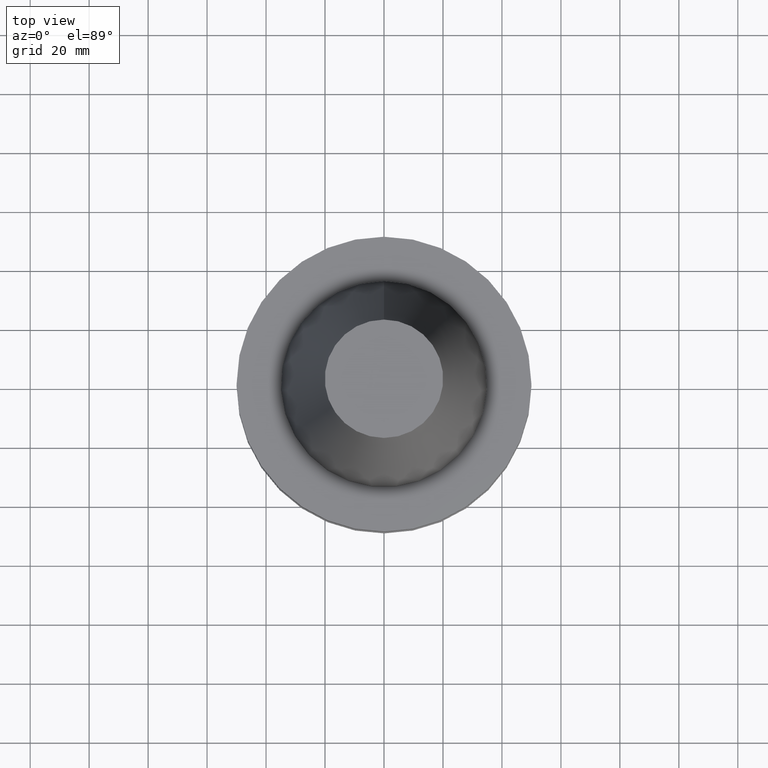
[diagram: clean part render]
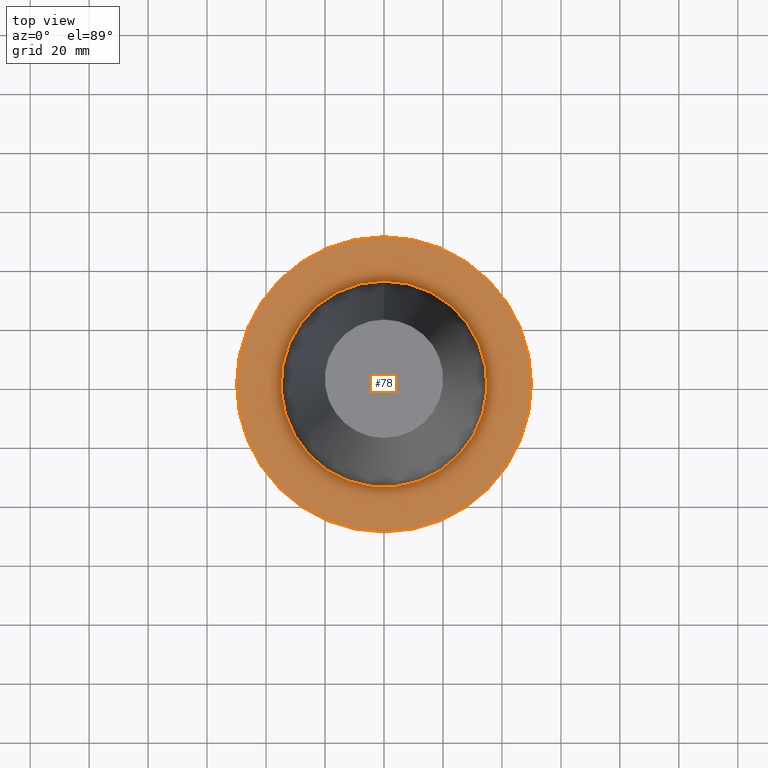
[diagram: same view with one face highlighted and labeled with its STEP entity id]
A machine part, top view. The second image highlights one B-rep face of the part: STEP entity #78.
In plain terms, the highlighted planar face has unit normal (-0, -0, 1).
Its self-contained STEP definition (entity closure, byte-faithful):
#78=ADVANCED_FACE('',(#100,#101),#102,.T.);
#100=FACE_OUTER_BOUND('',#146,.T.);
#101=FACE_BOUND('',#147,.T.);
#102=PLANE('',#148);
#146=EDGE_LOOP('',(#198));
#147=EDGE_LOOP('',(#199));
#148=AXIS2_PLACEMENT_3D('',#200,#201,#202);
#198=ORIENTED_EDGE('',*,*,#265,.F.);
#199=ORIENTED_EDGE('',*,*,#264,.T.);
#200=CARTESIAN_POINT('',(1.83697019872102E-016,42.4625,-2.99999999999999));
#201=DIRECTION('',(-6.12323399573677E-017,-1.22464679914735E-016,1.0));
#202=DIRECTION('',(1.23259516440783E-032,-1.0,-1.22464679914735E-016));
#264=EDGE_CURVE('',#281,#281,#282,.T.);
#265=EDGE_CURVE('',#283,#283,#284,.T.);
#281=VERTEX_POINT('',#311);
#282=CIRCLE('',#312,34.925);
#283=VERTEX_POINT('',#313);
#284=CIRCLE('',#314,50.0);
#311=CARTESIAN_POINT('',(1.83697019872103E-016,34.925,-3.0));
#312=AXIS2_PLACEMENT_3D('',#343,#344,#345);
#313=CARTESIAN_POINT('',(1.83697019872102E-016,50.0,-2.99999999999999));
#314=AXIS2_PLACEMENT_3D('',#346,#347,#348);
#343=CARTESIAN_POINT('',(1.83697019872103E-016,3.67394039744206E-016,-3.0));
#344=DIRECTION('',(6.12323399573677E-017,1.22464679914705E-016,-1.0));
#345=DIRECTION('',(-1.23259516440742E-032,1.0,1.22464679914705E-016));
#346=CARTESIAN_POINT('',(1.83697019872103E-016,3.67394039744206E-016,-3.0));
#347=DIRECTION('',(6.12323399573677E-017,1.22464679914672E-016,-1.0));
#348=DIRECTION('',(-1.23259516440783E-032,1.0,1.22464679914672E-016));